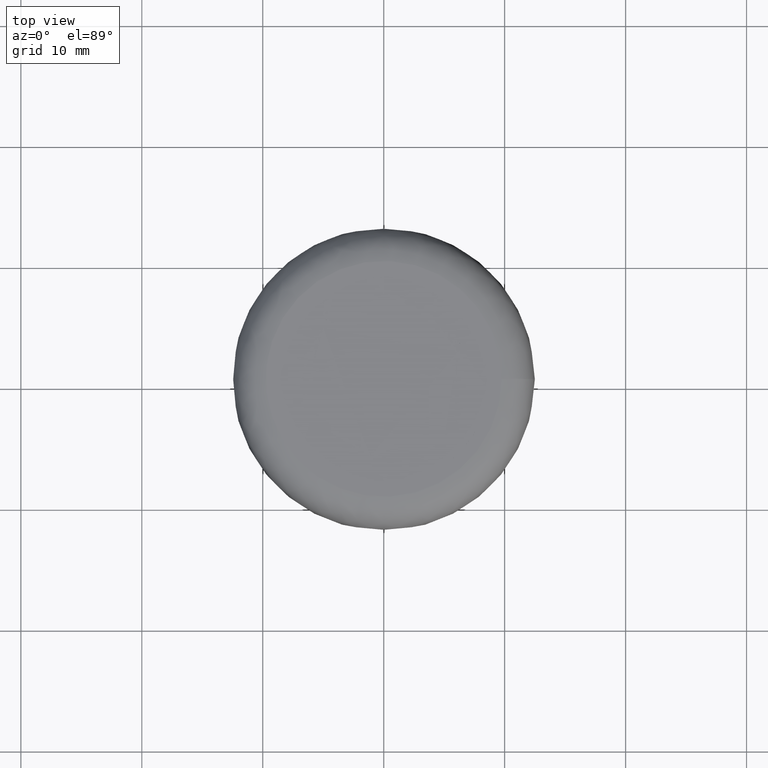
[diagram: clean part render]
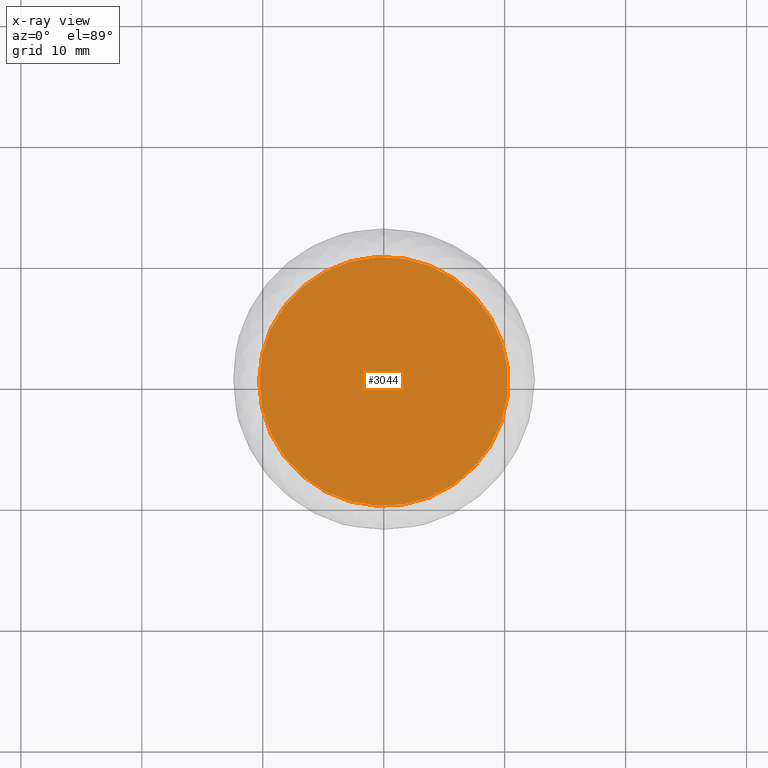
[diagram: x-ray — body ghosted, one internal face saturated and labeled with its STEP entity id]
A machine part, top view, then the same camera in x-ray: the body is ghosted and one INTERNAL B-rep face — a face not visible from any outside direction — is saturated and labeled: STEP entity #3044.
In plain terms, the highlighted planar face has unit normal (0, 0, 1).
Its self-contained STEP definition (entity closure, byte-faithful):
#160=CIRCLE('',#3271,10.3);
#285=FACE_OUTER_BOUND('',#471,.T.);
#471=EDGE_LOOP('',(#2154));
#1318=VERTEX_POINT('',#4596);
#1634=EDGE_CURVE('',#1318,#1318,#160,.T.);
#2154=ORIENTED_EDGE('',*,*,#1634,.T.);
#2915=PLANE('',#3272);
#3044=ADVANCED_FACE('',(#285),#2915,.T.);
#3271=AXIS2_PLACEMENT_3D('',#4597,#3628,#3629);
#3272=AXIS2_PLACEMENT_3D('',#4599,#3631,#3632);
#3628=DIRECTION('center_axis',(0.,0.,1.));
#3629=DIRECTION('ref_axis',(1.,0.,0.));
#3631=DIRECTION('center_axis',(0.,0.,1.));
#3632=DIRECTION('ref_axis',(1.,0.,0.));
#4596=CARTESIAN_POINT('',(-10.3,-1.26138620312177E-15,-13.));
#4597=CARTESIAN_POINT('Origin',(0.,0.,-13.));
#4599=CARTESIAN_POINT('Origin',(7.9602041944578E-16,0.,-13.));